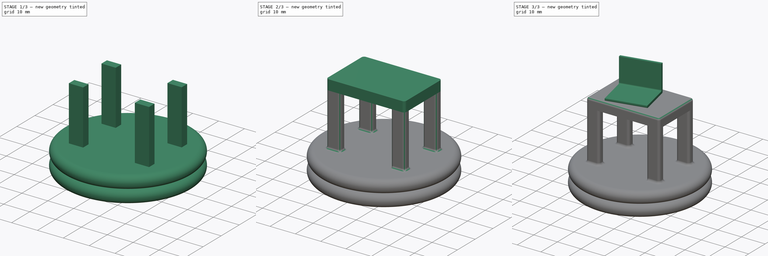
[diagram: build sequence overview — one tinted view per stage of 3, left to right]
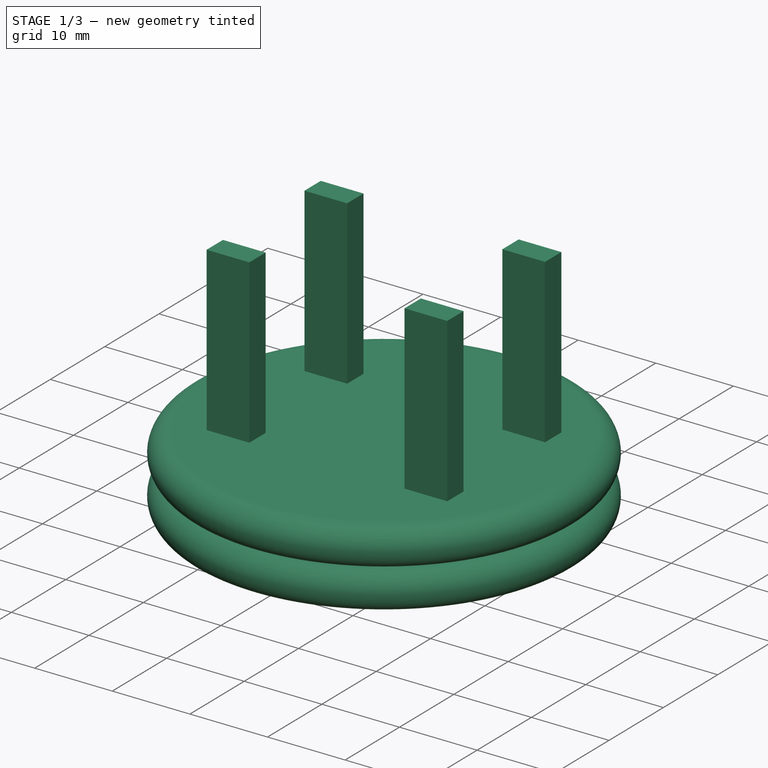
[diagram: stage 1 of 3 — iso view after this stage's code; geometry added in this stage tinted green]
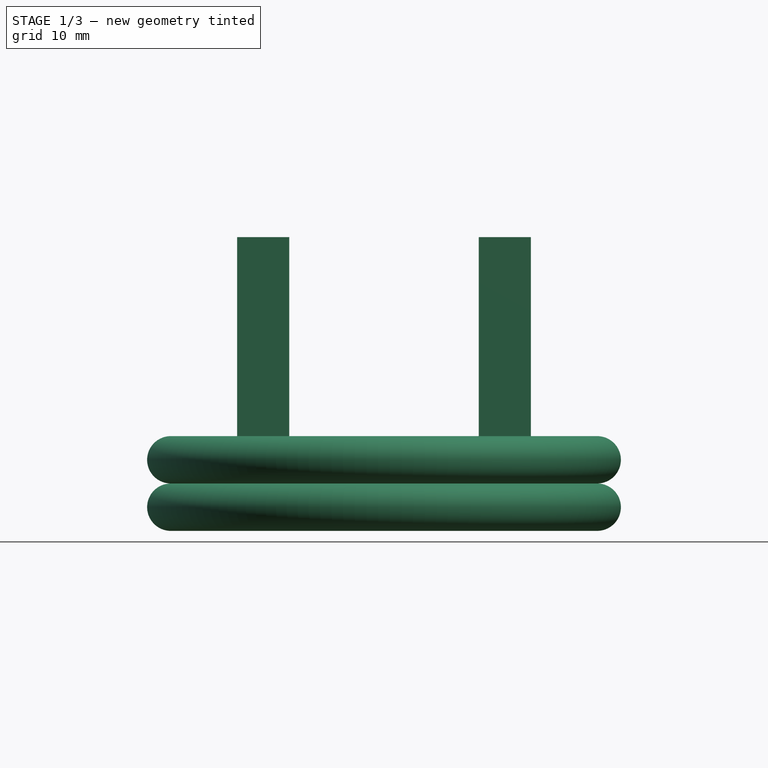
[diagram: stage 1 of 3 — front view after this stage's code; geometry added in this stage tinted green]
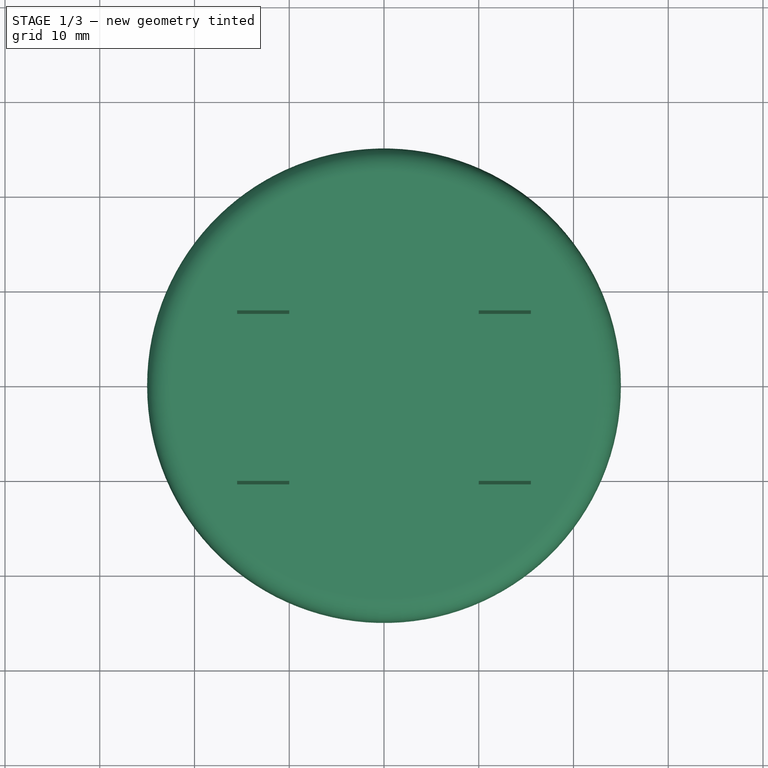
[diagram: stage 1 of 3 — top view after this stage's code; geometry added in this stage tinted green]
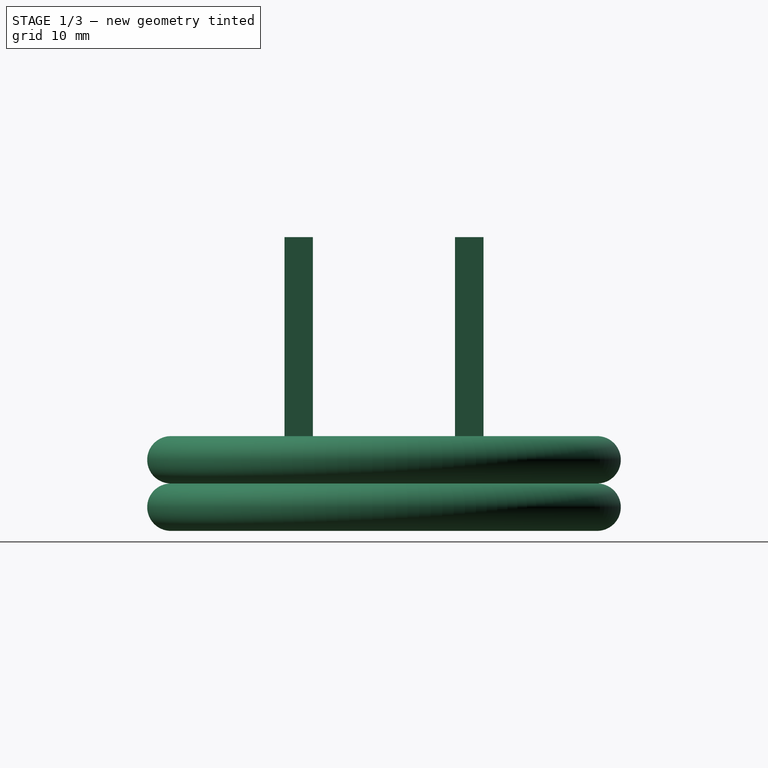
[diagram: stage 1 of 3 — right view after this stage's code; geometry added in this stage tinted green]
FCSTD DOCUMENT  (FreeCAD 0.21R33668 +26 (Git))
Label: Батина фигурка
License: All rights reserved
LicenseURL: https://en.wikipedia.org/wiki/All_rights_reserved
objects: Sketcher::SketchObject×4, PartDesign::Pad×3, PartDesign::Plane×2, PartDesign::Fillet×2, PartDesign::Revolution×1, PartDesign::Body×1
note: 19 computed .brp shape members not serialized (recipe doc carries the construction recipe); baked Part::Feature solids carry a one-line shape summary decoded from their .brp

FEATURE [Sketcher::SketchObject] Sketch
  FullyConstrained = true
  MapMode = 5
  Placement = pos=(0,0,0) rot=(1,0,0;1.5708rad)
  Support = -> [XZ_Plane]
  sketch-geometry (7):
    g0: LineSegment StartX=0 StartY=0 StartZ=0 EndX=0 EndY=10 EndZ=0
    g1: LineSegment StartX=0 StartY=10 StartZ=0 EndX=22.5 EndY=10 EndZ=0
    g2: ArcOfCircle CenterX=22.5 CenterY=7.5 CenterZ=0 NormalX=0 NormalY=0 NormalZ=1 AngleXU=0 Radius=2.5 StartAngle=4.71239 EndAngle=7.85398
    g3: ArcOfCircle CenterX=22.5 CenterY=2.5 CenterZ=0 NormalX=0 NormalY=0 NormalZ=1 AngleXU=0 Radius=2.5 StartAngle=4.71239 EndAngle=7.85398
    g4: LineSegment StartX=22.5 StartY=0 StartZ=0 EndX=0 EndY=0 EndZ=0
    g5: GeomPoint X=25 Y=2.50001 Z=0
    g6: LineSegment StartX=25 StartY=2.50001 StartZ=0 EndX=25 EndY=7.5 EndZ=0
  constraints (19):
    c: Coincident(g0,g-1)
    c: PointOnObject(g0,g-2)
    c: Coincident(g1,g0)
    c: Horizontal(g1)
    c: Coincident(g4,g3)
    c: Coincident(g4,g0)
    c: Horizontal(g4)
    c: PointOnObject(g5,g3)
    c: Coincident(g6,g5)
    c: PointOnObject(g6,g2)
    c: Tangent(g6,g3)
    c: Vertical(g6)
    c: Tangent(g2,g1) = 1.5708
    c: Vertical(g3,g2)
    c: Tangent(g3,g2) = 1.5708
    c: Vertical(g3,g1)
    c: DistanceY(g0,g0) = 10
    c: DistanceX(g0,g5) = 25
    c: Horizontal(g2,g6)
FEATURE [PartDesign::Revolution] Revolution
  Angle = 360
  Axis = (0,2e-16,1)
  Base = (0,0,0)
  Placement = pos=(0,0,0) rot=(1,0,0;1.5708rad)
  Profile = -> Sketch
  ReferenceAxis = -> Sketch [V_Axis]
  Reversed = true
FEATURE [PartDesign::Plane] DatumPlane
  Length = 60
  MapMode = 5
  Placement = pos=(0,6.6e-15,10) rot=(0,0,1;3.14159rad)
  ResizeMode = 0
  Support = -> [Revolution]
  Width = 60
FEATURE [Sketcher::SketchObject] Sketch001
  ExternalGeometry = -> [Revolution]
  FullyConstrained = true
  MapMode = 5
  Placement = pos=(0,6.6e-15,10) rot=(0,0,1;3.14159rad)
  Support = -> [DatumPlane]
  sketch-geometry (19):
    g0: LineSegment StartX=-15.5 StartY=10.5 StartZ=0 EndX=-10 EndY=10.5 EndZ=0
    g1: LineSegment StartX=-10 StartY=10.5 StartZ=0 EndX=-10 EndY=7.5 EndZ=0
    g2: LineSegment StartX=-10 StartY=7.5 StartZ=0 EndX=-15.5 EndY=7.5 EndZ=0
    g3: LineSegment StartX=-15.5 StartY=7.5 StartZ=0 EndX=-15.5 EndY=10.5 EndZ=0
    g4: LineSegment StartX=10 StartY=10.5 StartZ=0 EndX=15.5 EndY=10.5 EndZ=0
    g5: LineSegment StartX=15.5 StartY=10.5 StartZ=0 EndX=15.5 EndY=7.5 EndZ=0
    g6: LineSegment StartX=15.5 StartY=7.5 StartZ=0 EndX=10 EndY=7.5 EndZ=0
    g7: LineSegment StartX=10 StartY=7.5 StartZ=0 EndX=10 EndY=10.5 EndZ=0
    g8: LineSegment StartX=-15.5 StartY=-7.5 StartZ=0 EndX=-10 EndY=-7.5 EndZ=0
    g9: LineSegment StartX=-10 StartY=-7.5 StartZ=0 EndX=-10 EndY=-10.5 EndZ=0
    g10: LineSegment StartX=-10 StartY=-10.5 StartZ=0 EndX=-15.5 EndY=-10.5 EndZ=0
    g11: LineSegment StartX=-15.5 StartY=-10.5 StartZ=0 EndX=-15.5 EndY=-7.5 EndZ=0
    g12: LineSegment StartX=10 StartY=-7.5 StartZ=0 EndX=15.5 EndY=-7.5 EndZ=0
    g13: LineSegment StartX=15.5 StartY=-7.5 StartZ=0 EndX=15.5 EndY=-10.5 EndZ=0
    g14: LineSegment StartX=15.5 StartY=-10.5 StartZ=0 EndX=10 EndY=-10.5 EndZ=0
    g15: LineSegment StartX=10 StartY=-10.5 StartZ=0 EndX=10 EndY=-7.5 EndZ=0
    g16: GeomPoint X=22.5 Y=0 Z=0
    g17: GeomPoint X=10 Y=0 Z=0
    g18: GeomPoint X=-22.5 Y=0 Z=0
  constraints (53):
    c: Coincident(g0,g1)
    c: Coincident(g1,g2)
    c: Coincident(g2,g3)
    c: Coincident(g3,g0)
    c: Horizontal(g0)
    c: Horizontal(g2)
    c: Vertical(g1)
    c: Vertical(g3)
    c: Coincident(g4,g5)
    c: Coincident(g5,g6)
    c: Coincident(g6,g7)
    c: Coincident(g7,g4)
    c: Horizontal(g4)
    c: Horizontal(g6)
    c: Vertical(g5)
    c: Vertical(g7)
    c: Coincident(g8,g9)
    c: Coincident(g9,g10)
    c: Coincident(g10,g11)
    c: Coincident(g11,g8)
    c: Horizontal(g8)
    c: Horizontal(g10)
    c: Vertical(g9)
    c: Vertical(g11)
    c: Coincident(g12,g13)
    c: Coincident(g13,g14)
    c: Coincident(g14,g15)
    c: Coincident(g15,g12)
    c: Horizontal(g12)
    c: Horizontal(g14)
    c: Vertical(g13)
    c: Vertical(g15)
    c: Vertical(g8,g2)
    c: Vertical(g5,g12)
    c: Vertical(g12,g6)
    c: Vertical(g1,g8)
    c: Horizontal(g0,g4)
    c: Horizontal(g6,g1)
    c: Horizontal(g8,g12)
    c: Horizontal(g14,g9)
    c: Equal(g0,g12)
    c: Equal(g9,g7)
    c: DistanceX(g4,g4) = 5.5
    c: DistanceY(g5,g5) = 3
    c: PointOnObject(g16,g-3)
    c: PointOnObject(g16,g-1)
    c: DistanceX(g5,g16) = 7
    c: DistanceY(g12,g5) = 15
    c: PointOnObject(g17,g-1)
    c: Symmetric(g6,g12,g17)
    c: PointOnObject(g18,g-3)
    c: PointOnObject(g18,g-1)
    c: DistanceX(g18,g2) = 7
FEATURE [PartDesign::Pad] Pad
  BaseFeature = -> Revolution
  Direction = (0,2e-16,1)
  Length = 21
  Length2 = 10
  Placement = pos=(0,0,0) rot=(1,0,0;1.5708rad)
  Profile = -> Sketch001
  ReferenceAxis = -> Sketch001 [N_Axis]
  Type = 0
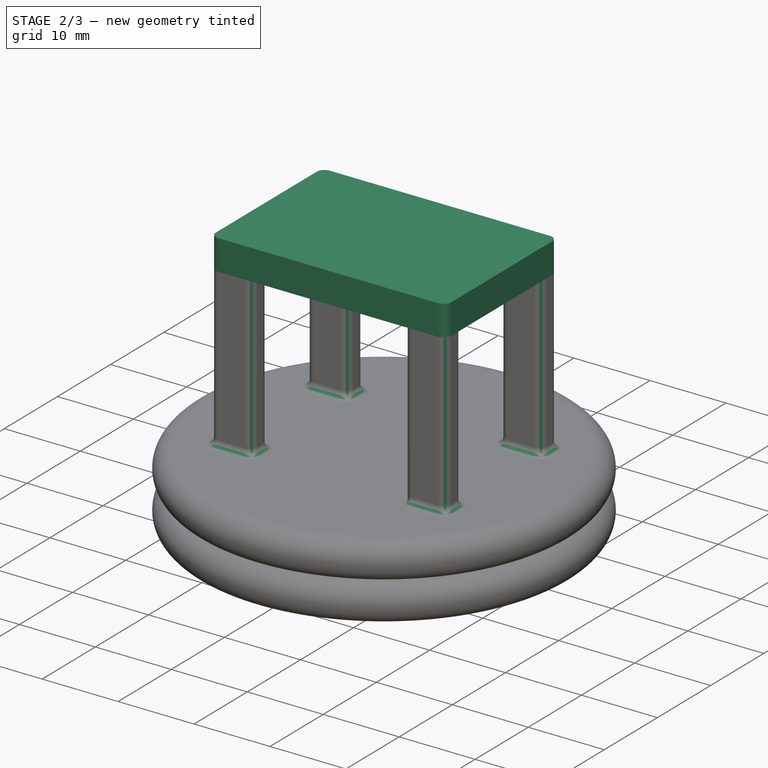
[diagram: stage 2 of 3 — iso view after this stage's code; geometry added in this stage tinted green]
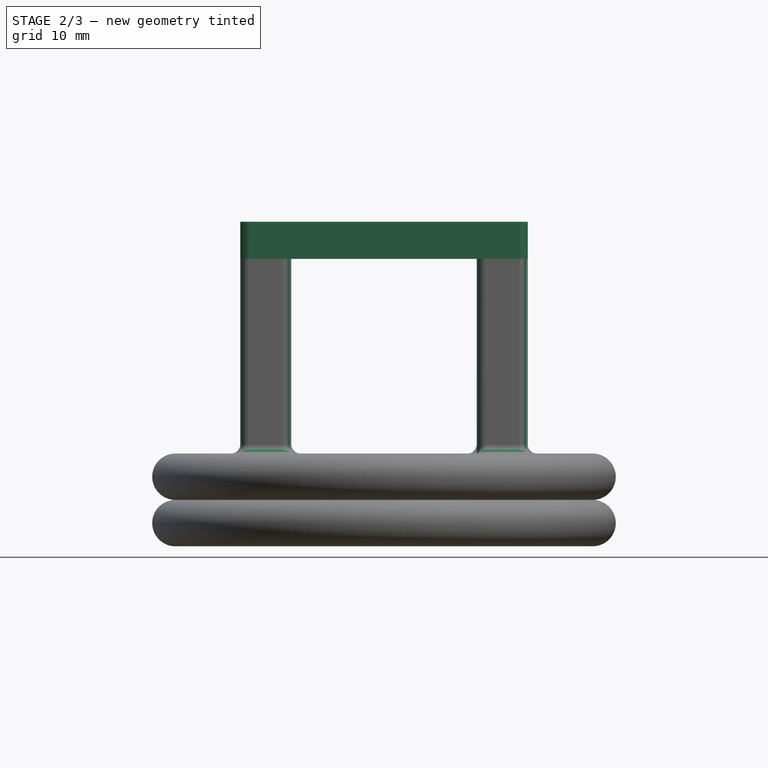
[diagram: stage 2 of 3 — front view after this stage's code; geometry added in this stage tinted green]
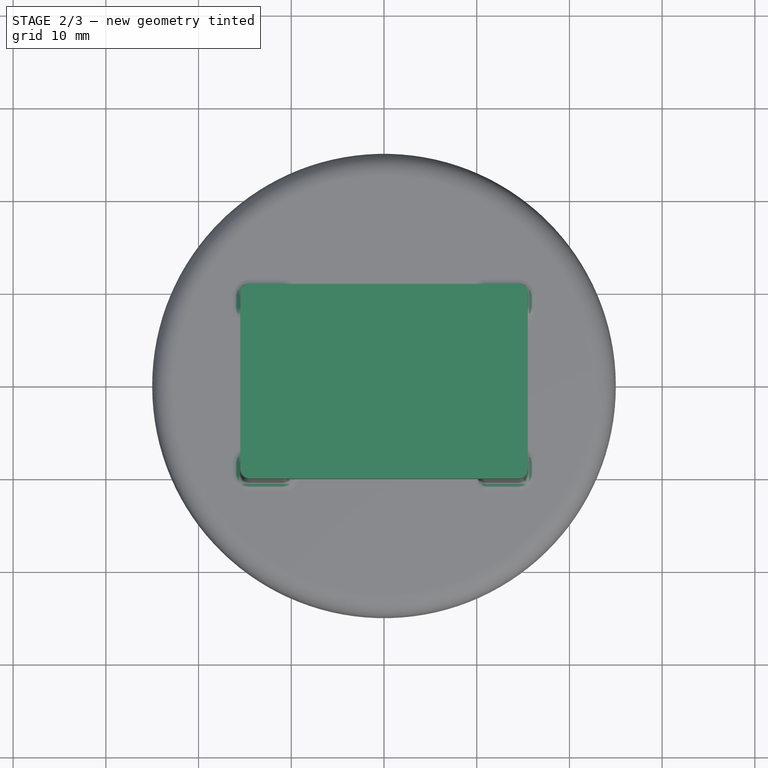
[diagram: stage 2 of 3 — top view after this stage's code; geometry added in this stage tinted green]
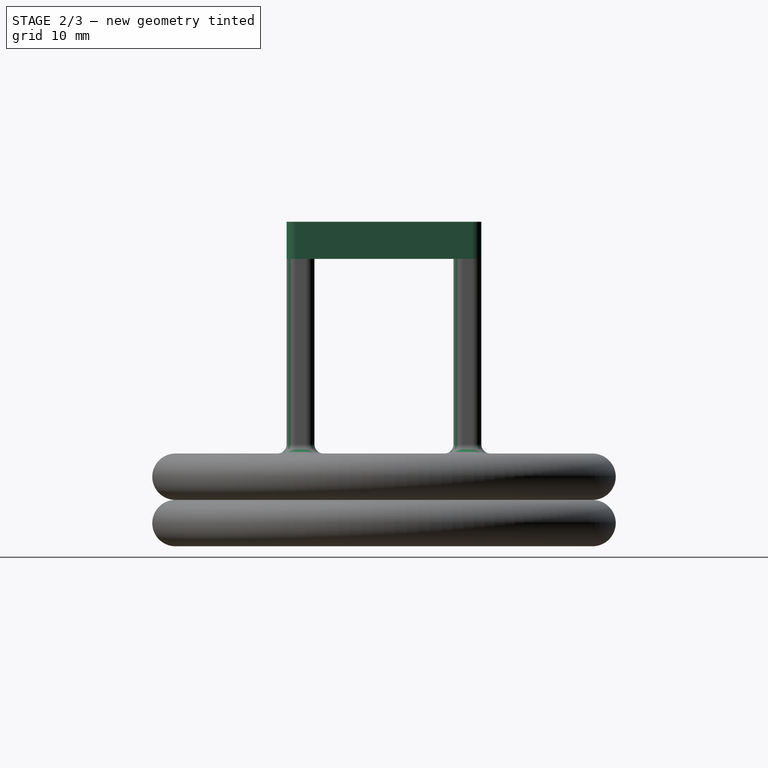
[diagram: stage 2 of 3 — right view after this stage's code; geometry added in this stage tinted green]
FEATURE [PartDesign::Fillet] Fillet
  Base = -> Pad [Edge44,Edge20,Edge23,Edge21,Edge39,Edge36,Edge45,Edge29,Edge28,Edge37,Edge41,Edge49,Edge47,Edge33,Edge31,Edge17,Edge14,Edge13,Edge10,Edge2,Edge5,Edge25,Edge9,Edge6,Edge11,Edge3,Edge7,Edge15,Edge4,Edge8,Edge16]
  BaseFeature = -> Pad
  Placement = pos=(0,0,0) rot=(1,0,0;1.5708rad)
  Radius = 1
  SupportTransform = false
  UseAllEdges = false
FEATURE [PartDesign::Plane] DatumPlane001
  Length = 60
  MapMode = 45
  Placement = pos=(1.39164e-11,1.68e-14,31) rot=(0,0,1;1.5708rad)
  ResizeMode = 0
  Support = -> [Fillet]
  Width = 60
FEATURE [Sketcher::SketchObject] Sketch002
  ExternalGeometry = -> [Fillet]
  FullyConstrained = true
  MapMode = 5
  Placement = pos=(1.39164e-11,1.68e-14,31) rot=(0,0,1;1.5708rad)
  Support = -> [DatumPlane001]
  sketch-geometry (8):
    g0: ArcOfCircle CenterX=-9.5 CenterY=14.5 CenterZ=0 NormalX=0 NormalY=0 NormalZ=1 AngleXU=0 Radius=1 StartAngle=1.5708 EndAngle=3.14159
    g1: LineSegment StartX=-9.5 StartY=15.5 StartZ=0 EndX=9.5 EndY=15.5 EndZ=0
    g2: ArcOfCircle CenterX=9.5 CenterY=14.5 CenterZ=0 NormalX=0 NormalY=0 NormalZ=1 AngleXU=0 Radius=1 StartAngle=0 EndAngle=1.5708
    g3: LineSegment StartX=10.5 StartY=14.5 StartZ=0 EndX=10.5 EndY=-14.5 EndZ=0
    g4: ArcOfCircle CenterX=9.5 CenterY=-14.5 CenterZ=0 NormalX=0 NormalY=0 NormalZ=1 AngleXU=0 Radius=1 StartAngle=4.71239 EndAngle=6.28319
    g5: LineSegment StartX=9.5 StartY=-15.5 StartZ=0 EndX=-9.5 EndY=-15.5 EndZ=0
    g6: ArcOfCircle CenterX=-9.5 CenterY=-14.5 CenterZ=0 NormalX=0 NormalY=0 NormalZ=1 AngleXU=0 Radius=1 StartAngle=3.14158 EndAngle=4.71239
    g7: LineSegment StartX=-10.5 StartY=-14.5 StartZ=0 EndX=-10.5 EndY=14.5 EndZ=0
  constraints (20):
    c: Coincident(g0,g-4)
    c: Coincident(g0,g-4)
    c: Coincident(g1,g0)
    c: Horizontal(g1)
    c: Tangent(g1,g-4)
    c: Coincident(g2,g-5)
    c: Coincident(g2,g-5)
    c: Coincident(g1,g2)
    c: Coincident(g3,g2)
    c: Vertical(g3)
    c: Coincident(g4,g-6)
    c: Coincident(g4,g3)
    c: Coincident(g4,g-6)
    c: Coincident(g5,g4)
    c: Coincident(g5,g-7)
    c: Coincident(g6,g-7)
    c: Coincident(g6,g5)
    c: Coincident(g7,g6)
    c: Coincident(g7,g0)
    c: Vertical(g7)
FEATURE [PartDesign::Pad] Pad001
  BaseFeature = -> Fillet
  Direction = (1e-16,-2e-16,1)
  Length = 4
  Length2 = 10
  Placement = pos=(0,0,0) rot=(1,0,0;1.5708rad)
  Profile = -> Sketch002
  ReferenceAxis = -> Sketch002 [N_Axis]
  Type = 0
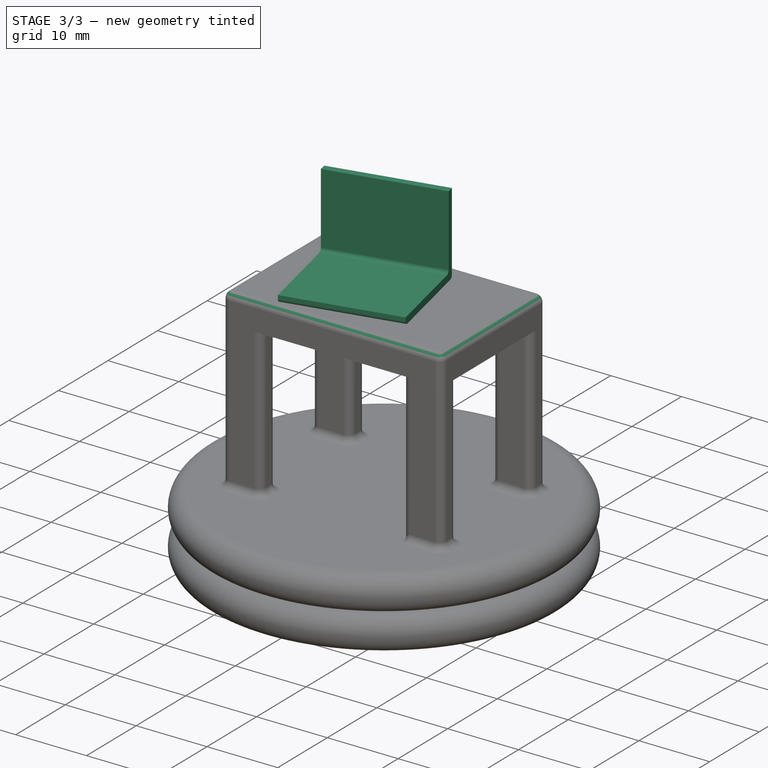
[diagram: stage 3 of 3 — iso view after this stage's code; geometry added in this stage tinted green]
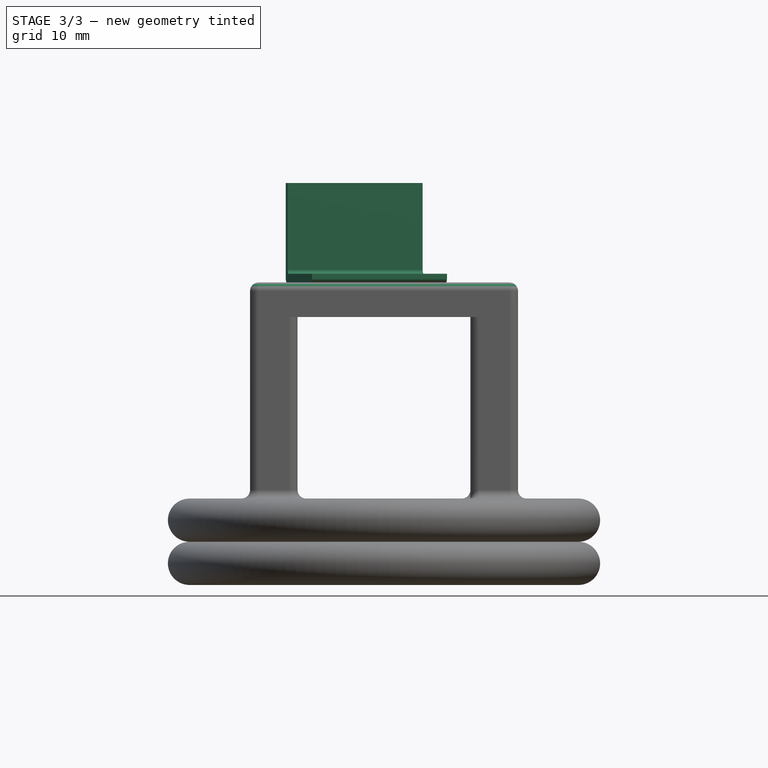
[diagram: stage 3 of 3 — front view after this stage's code; geometry added in this stage tinted green]
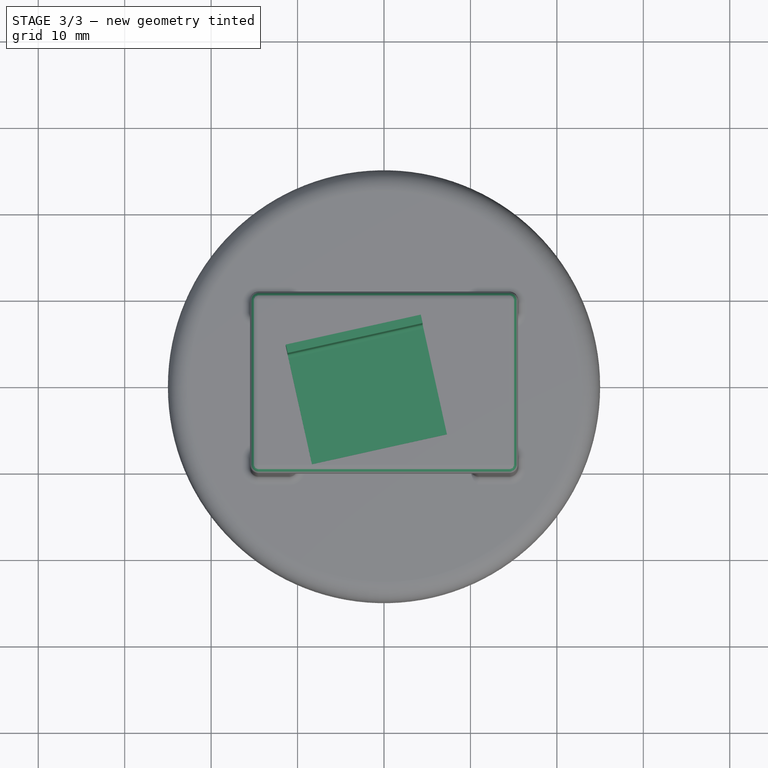
[diagram: stage 3 of 3 — top view after this stage's code; geometry added in this stage tinted green]
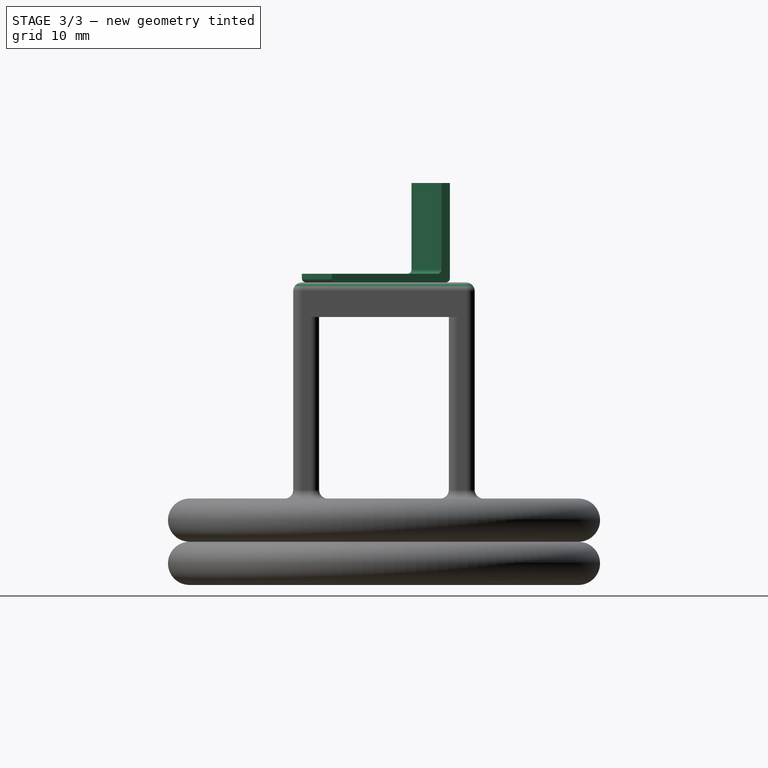
[diagram: stage 3 of 3 — right view after this stage's code; geometry added in this stage tinted green]
FEATURE [PartDesign::Fillet] Fillet001
  Base = -> Pad001 [Edge172,Edge181,Edge183,Edge182,Edge178,Edge184,Edge175,Edge185]
  BaseFeature = -> Pad001
  Placement = pos=(0,0,0) rot=(1,0,0;1.5708rad)
  Radius = 1
  SupportTransform = false
  UseAllEdges = false
FEATURE [Sketcher::SketchObject] Sketch003
  AttachmentOffset = pos=(-2,0,-10) rot=(0,1,0;0.218166rad)
  ExternalGeometry = -> [Fillet001]
  FullyConstrained = false
  MapMode = 5
  Placement = pos=(-10,-2,-1.8e-15) rot=(0.49357,0.614975,0.614975;2.22461rad)
  Support = -> [YZ_Plane]
  sketch-geometry (12):
    g0: LineSegment StartX=-7.68895 StartY=35.5 StartZ=0 EndX=-7.68895 EndY=36 EndZ=0
    g1: LineSegment StartX=-7.68895 StartY=36 StartZ=0 EndX=4.81105 EndY=36 EndZ=0
    g2: LineSegment StartX=5.31105 StartY=36.5 StartZ=0 EndX=5.31105 EndY=46.5 EndZ=0
    g3: LineSegment StartX=5.31105 StartY=46.5 StartZ=0 EndX=6.31105 EndY=46.5 EndZ=0
    g4: LineSegment StartX=6.31105 StartY=46.5 StartZ=0 EndX=6.31105 EndY=36 EndZ=0
    g5: LineSegment StartX=-7.18895 StartY=35 StartZ=0 EndX=5.81105 EndY=35 EndZ=0
    g6: LineSegment StartX=6.31105 StartY=35.5 StartZ=0 EndX=6.31105 EndY=36 EndZ=0
    g7: ArcOfCircle CenterX=-7.18895 CenterY=35.5 CenterZ=0 NormalX=0 NormalY=0 NormalZ=1 AngleXU=0 Radius=0.5 StartAngle=3.14159 EndAngle=4.71239
    g8: GeomPoint X=-7.68895 Y=36 Z=0
    g9: ArcOfCircle CenterX=5.81105 CenterY=35.5 CenterZ=0 NormalX=0 NormalY=0 NormalZ=1 AngleXU=0 Radius=0.5 StartAngle=4.71239 EndAngle=6.28319
    g10: ArcOfCircle CenterX=4.81105 CenterY=36.5 CenterZ=0 NormalX=0 NormalY=0 NormalZ=1 AngleXU=0 Radius=0.5 StartAngle=4.71239 EndAngle=6.28319
    g11: GeomPoint X=5.31105 Y=36 Z=0
  constraints (29):
    c: Vertical(g0)
    c: Vertical(g2)
    c: Coincident(g3,g2)
    c: Horizontal(g3)
    c: Coincident(g4,g3)
    c: Vertical(g4)
    c: Horizontal(g5)
    c: Coincident(g6,g4)
    c: Vertical(g6)
    c: Horizontal(g4,g11)
    c: Tangent(g5,g7) = -1.5708
    c: Tangent(g0,g7) = 1.5708
    c: DistanceX(g3,g3) = 1
    c: Tangent(g6,g9) = -1.5708
    c: Tangent(g5,g9) = -1.5708
    c: Horizontal(g9,g7)
    c: PointOnObject(g5,g-3)
    c: Coincident(g1,g8)
    c: Coincident(g1,g0)
    c: Horizontal(g1)
    c: PointOnObject(g11,g2)
    c: PointOnObject(g11,g1)
    c: Tangent(g2,g10) = -1.5708
    c: Tangent(g1,g10) = -1.5708
    c: Equal(g10,g9)
    c: DistanceY(g5,g1) = 1
    c: Radius(g9) = 0.5
    c: DistanceY(g2,g2) = 10
    c: DistanceX(g1,g1) = 12.5
FEATURE [PartDesign::Pad] Pad002
  BaseFeature = -> Fillet001
  Direction = (0.976296,0.21644,1e-16)
  Length = 16
  Length2 = 10
  Placement = pos=(0,0,0) rot=(1,0,0;1.5708rad)
  Profile = -> Sketch003
  ReferenceAxis = -> Sketch003 [N_Axis]
  Type = 0
FEATURE [PartDesign::Body] Body  label="Тело"
  Group = -> [Sketch,Revolution,DatumPlane,Sketch001,Pad,Fillet,DatumPlane001,Sketch002,Pad001,Fillet001,Sketch003,Pad002]
  Origin = -> Origin
  Tip = -> Pad002
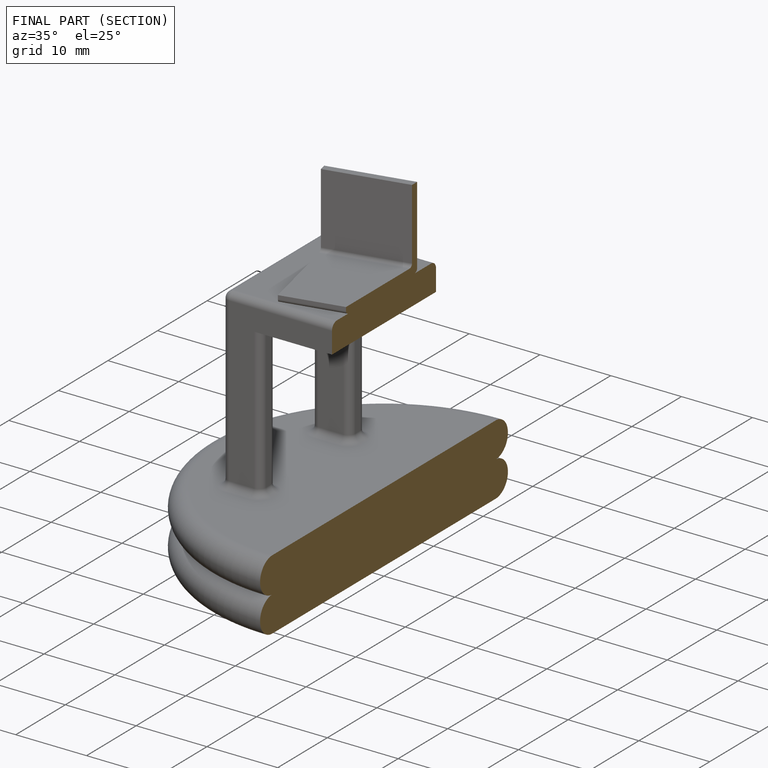
[diagram: finished part — half-section view (interior)]
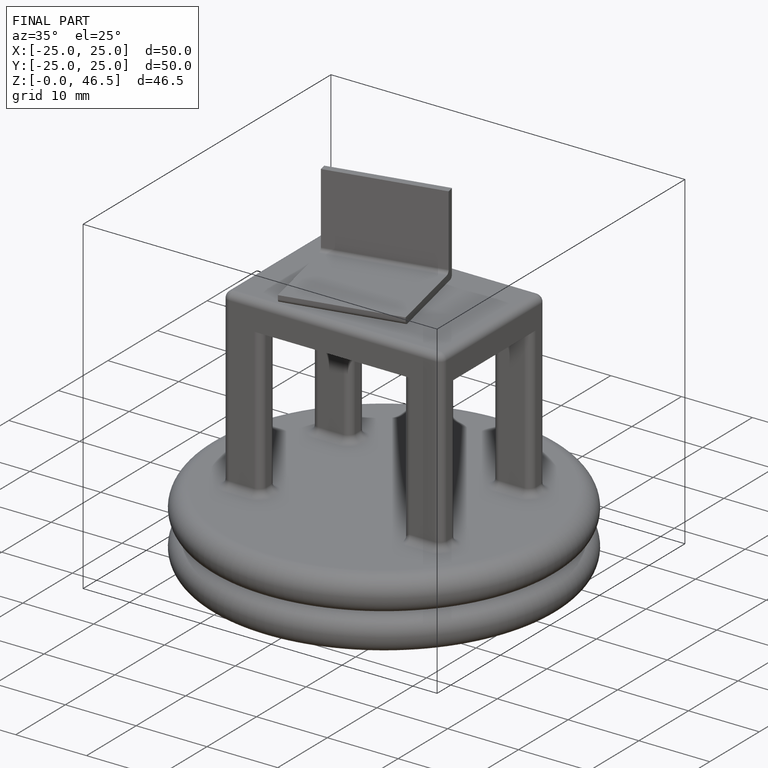
[diagram: finished part — iso view with bounding-box wireframe]
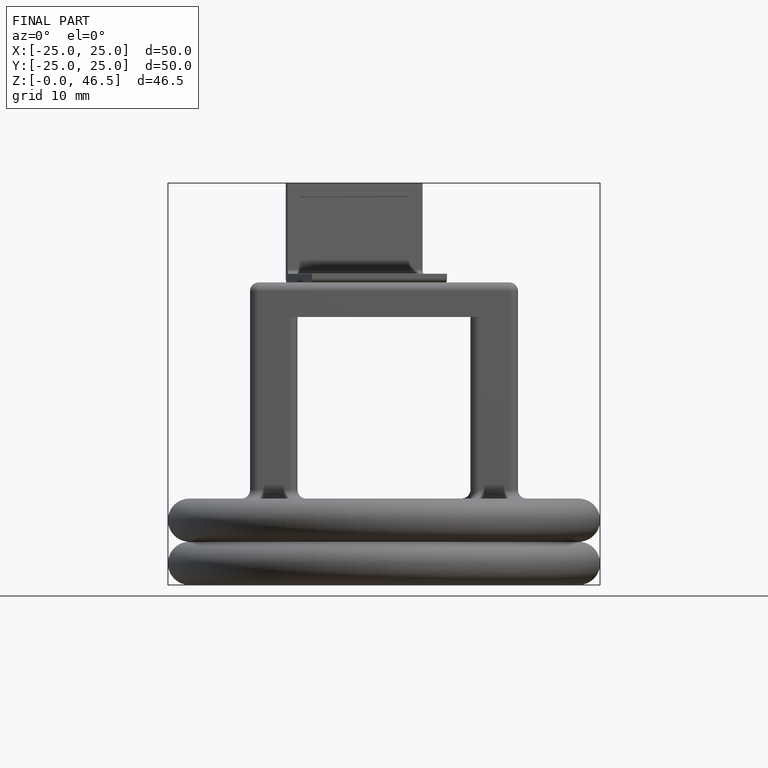
[diagram: finished part — front view with bounding-box wireframe]
